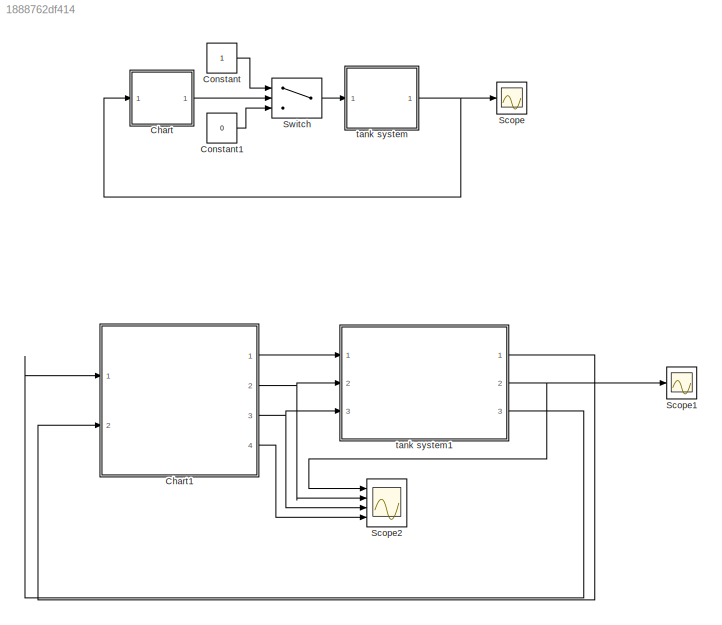
MODEL slx_1888762df414
KIND model
CONFIG AbsTol = auto
CONFIG EnableMultiTasking = off
CONFIG FixedStep = auto
CONFIG MaxStep = auto
CONFIG MinStep = auto
CONFIG RelTol = 1e-3
CONFIG SampleTimeConstraint = Unconstrained
CONFIG Solver = VariableStepAuto
CONFIG SolverName = VariableStepAuto
CONFIG StartTime = 0.0
CONFIG StopTime = 20.0
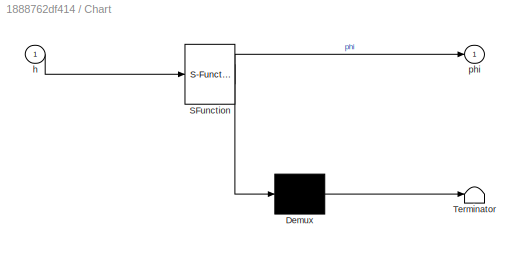
BLOCK [SubSystem] Chart
  Commented = on
  ErrorFcn = Stateflow.Translate.translate
  PermitHierarchicalResolution = ExplicitOnly
  Ports = [1, 1]
  RequestExecContextInheritance = off
  SFBlockType = Chart
  TreatAsAtomicUnit = on
  Variant = off
BLOCK [Demux] Chart/ Demux 
  Outputs = 1
  Ports = [1, 1]
BLOCK [S-Function] Chart/ SFunction 
  EnableBusSupport = on
  FunctionName = sf_sfun
  PortCounts = [1 2]
  Ports = [1, 2]
  SFcnIsStateOwnerBlock = off
  SFunctionDeploymentMode = off
  Tag = Stateflow S-Function TankSystem 3
BLOCK [Terminator] Chart/ Terminator 
BLOCK [Inport] Chart/h
  IconDisplay = Port number
BLOCK [Outport] Chart/phi
  IconDisplay = Port number
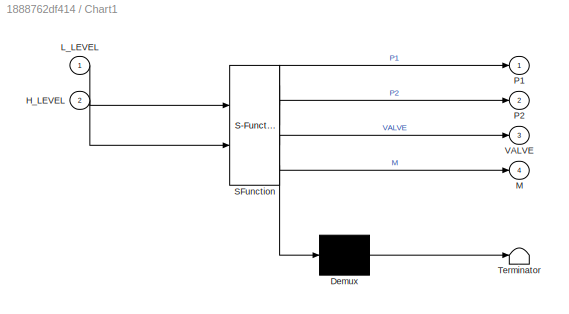
BLOCK [SubSystem] Chart1
  ErrorFcn = Stateflow.Translate.translate
  PermitHierarchicalResolution = ExplicitOnly
  Ports = [2, 4]
  RequestExecContextInheritance = off
  SFBlockType = Chart
  TreatAsAtomicUnit = on
  Variant = off
BLOCK [Demux] Chart1/ Demux 
  Outputs = 1
  Ports = [1, 1]
BLOCK [S-Function] Chart1/ SFunction 
  EnableBusSupport = on
  FunctionName = sf_sfun
  PortCounts = [2 5]
  Ports = [2, 5]
  SFcnIsStateOwnerBlock = off
  SFunctionDeploymentMode = off
  Tag = Stateflow S-Function TankSystem 1
BLOCK [Terminator] Chart1/ Terminator 
BLOCK [Inport] Chart1/H_LEVEL
  IconDisplay = Port number
  Port = 2
BLOCK [Inport] Chart1/L_LEVEL
  IconDisplay = Port number
BLOCK [Outport] Chart1/M
  IconDisplay = Port number
  Port = 4
BLOCK [Outport] Chart1/P1
  IconDisplay = Port number
BLOCK [Outport] Chart1/P2
  IconDisplay = Port number
  Port = 2
BLOCK [Outport] Chart1/VALVE
  IconDisplay = Port number
  Port = 3
BLOCK [Constant] Constant
  Commented = on
BLOCK [Constant] Constant1
  Commented = on
  Value = 0
BLOCK [Scope] Scope
  Commented = on
  NumInputPorts = 1
  Ports = [1]
  ScopeSpecificationString = Simulink.scopes.TimeScopeBlockCfg('CurrentConfiguration', extmgr.ConfigurationSet(extmgr.Configuration('Core','General UI',true),extmgr.Configuration('Core','Source UI',true),extmgr.Configuration('Sources','WiredSimulink',true),extmgr.Configuration('Visuals','Time Domain',true,'SerializedDisplays',{struct('MinYLimReal','0.43468','MaxYLimReal','0.56421','YLabelReal','','MinYLimMag','0.43468','MaxYL...<+1385ch>
BLOCK [Scope] Scope1
  NumInputPorts = 1
  Ports = [1]
  ScopeSpecificationString = Simulink.scopes.TimeScopeBlockCfg('CurrentConfiguration', extmgr.ConfigurationSet(extmgr.Configuration('Core','General UI',true),extmgr.Configuration('Core','Source UI',true),extmgr.Configuration('Sources','WiredSimulink',true,'DataLoggingVariableName','ScopeData1'),extmgr.Configuration('Visuals','Time Domain',true,'SerializedDisplays',{struct('MinYLimReal','0.06025','MaxYLimReal','0.94878','YLabe...<+1371ch>
BLOCK [Scope] Scope2
  NumInputPorts = 4
  Ports = [4]
  ScopeSpecificationString = Simulink.scopes.TimeScopeBlockCfg('CurrentConfiguration', extmgr.ConfigurationSet(extmgr.Configuration('Core','General UI',true),extmgr.Configuration('Core','Source UI',true),extmgr.Configuration('Sources','WiredSimulink',true,'DataLoggingVariableName','ScopeData2'),extmgr.Configuration('Visuals','Time Domain',true,'SerializedDisplays',{struct('MinYLimReal','0.06029','MaxYLimReal','0.94839','YLabe...<+3524ch>
BLOCK [Switch] Switch
  Commented = on
  Criteria = u2 ~= 0
  InputSameDT = off
  SaturateOnIntegerOverflow = off
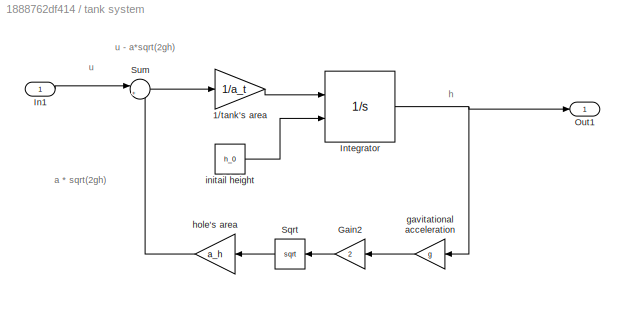
BLOCK [SubSystem] tank system
  Commented = on
  Ports = [1, 1]
  RequestExecContextInheritance = off
  Variant = off
BLOCK [Gain] tank system/1//tank's area
  Gain = 1/a_t
  OutDataTypeStr = Inherit: Inherit via internal rule
  ParamDataTypeStr = Inherit: Inherit via internal rule
  SaturateOnIntegerOverflow = off
BLOCK [Gain] tank system/Gain2
  Gain = 2
  OutDataTypeStr = Inherit: Inherit via internal rule
  ParamDataTypeStr = Inherit: Inherit via internal rule
  SaturateOnIntegerOverflow = off
BLOCK [Inport] tank system/In1
  IconDisplay = Port number
BLOCK [Integrator] tank system/Integrator
  InitialConditionSource = external
  LimitOutput = on
  LowerSaturationLimit = 0
  Ports = [2, 1]
  UpperSaturationLimit = H
BLOCK [Outport] tank system/Out1
  IconDisplay = Port number
BLOCK [Sqrt] tank system/Sqrt
BLOCK [Sum] tank system/Sum
  IconShape = round
  InputSameDT = off
  Inputs = |+-
  OutDataTypeStr = Inherit: Inherit via internal rule
  Ports = [2, 1]
  SaturateOnIntegerOverflow = off
BLOCK [Gain] tank system/gavitational acceleration
  Gain = g
  OutDataTypeStr = Inherit: Inherit via internal rule
  ParamDataTypeStr = Inherit: Inherit via internal rule
  SaturateOnIntegerOverflow = off
BLOCK [Gain] tank system/hole's area
  Gain = a_h
  OutDataTypeStr = Inherit: Inherit via internal rule
  ParamDataTypeStr = Inherit: Inherit via internal rule
  SaturateOnIntegerOverflow = off
BLOCK [Constant] tank system/initail height
  Value = h_0
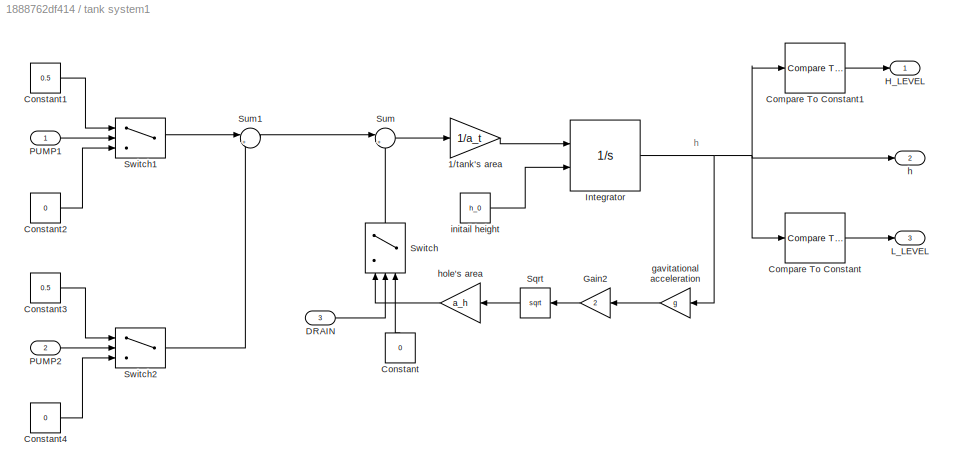
BLOCK [SubSystem] tank system1
  Ports = [3, 3]
  RequestExecContextInheritance = off
  Variant = off
BLOCK [Gain] tank system1/1//tank's area
  Gain = 1/a_t
  OutDataTypeStr = Inherit: Inherit via internal rule
  ParamDataTypeStr = Inherit: Inherit via internal rule
  SaturateOnIntegerOverflow = off
BLOCK [Reference] tank system1/Compare To Constant  REF=simulink/Logic and Bit
Operations/Compare
To Constant
  Ports = [1, 1]
  SourceBlock = simulink/Logic and Bit\nOperations/Compare\nTo Constant
  SourceType = Compare To Constant
BLOCK [Reference] tank system1/Compare To Constant1  REF=simulink/Logic and Bit
Operations/Compare
To Constant
  Ports = [1, 1]
  SourceBlock = simulink/Logic and Bit\nOperations/Compare\nTo Constant
  SourceType = Compare To Constant
BLOCK [Constant] tank system1/Constant
  Value = 0
BLOCK [Constant] tank system1/Constant1
  Value = 0.5
BLOCK [Constant] tank system1/Constant2
  Value = 0
BLOCK [Constant] tank system1/Constant3
  Value = 0.5
BLOCK [Constant] tank system1/Constant4
  Value = 0
BLOCK [Inport] tank system1/DRAIN
  IconDisplay = Port number
  Port = 3
BLOCK [Gain] tank system1/Gain2
  Gain = 2
  OutDataTypeStr = Inherit: Inherit via internal rule
  ParamDataTypeStr = Inherit: Inherit via internal rule
  SaturateOnIntegerOverflow = off
BLOCK [Outport] tank system1/H_LEVEL 
  IconDisplay = Port number
BLOCK [Integrator] tank system1/Integrator
  InitialConditionSource = external
  LimitOutput = on
  LowerSaturationLimit = 0
  Ports = [2, 1]
  UpperSaturationLimit = H
BLOCK [Outport] tank system1/L_LEVEL
  IconDisplay = Port number
  Port = 3
BLOCK [Inport] tank system1/PUMP1
  IconDisplay = Port number
BLOCK [Inport] tank system1/PUMP2
  IconDisplay = Port number
  Port = 2
BLOCK [Sqrt] tank system1/Sqrt
BLOCK [Sum] tank system1/Sum
  IconShape = round
  InputSameDT = off
  Inputs = |+-
  OutDataTypeStr = Inherit: Inherit via internal rule
  Ports = [2, 1]
  SaturateOnIntegerOverflow = off
BLOCK [Sum] tank system1/Sum1
  IconShape = round
  InputSameDT = off
  Inputs = |++
  OutDataTypeStr = Inherit: Inherit via internal rule
  Ports = [2, 1]
  SaturateOnIntegerOverflow = off
BLOCK [Switch] tank system1/Switch
  Criteria = u2 > Threshold
  InputSameDT = off
  SaturateOnIntegerOverflow = off
BLOCK [Switch] tank system1/Switch1
  Criteria = u2 ~= 0
  InputSameDT = off
  SaturateOnIntegerOverflow = off
BLOCK [Switch] tank system1/Switch2
  Criteria = u2 ~= 0
  InputSameDT = off
  SaturateOnIntegerOverflow = off
BLOCK [Gain] tank system1/gavitational acceleration
  Gain = g
  OutDataTypeStr = Inherit: Inherit via internal rule
  ParamDataTypeStr = Inherit: Inherit via internal rule
  SaturateOnIntegerOverflow = off
BLOCK [Outport] tank system1/h
  IconDisplay = Port number
  Port = 2
BLOCK [Gain] tank system1/hole's area
  Gain = a_h
  OutDataTypeStr = Inherit: Inherit via internal rule
  ParamDataTypeStr = Inherit: Inherit via internal rule
  SaturateOnIntegerOverflow = off
BLOCK [Constant] tank system1/initail height
  Value = h_0
ANNOTATION tank system: a * sqrt(2gh)
ANNOTATION tank system: h
ANNOTATION tank system: u
ANNOTATION tank system: u - a*sqrt(2gh)
ANNOTATION tank system1: h
LINE Chart1:1 -> tank system1:1
NET Chart1:2 -> Scope2:2, tank system1:2
NET Chart1:3 -> Scope2:3, tank system1:3
LINE Chart1:4 -> Scope2:4
LINE Chart:1 -> Switch:2
LINE Constant1:1 -> Switch:3
LINE Constant:1 -> Switch:1
LINE Switch:1 -> tank system:1
LINE tank system/1//tank's area:1 -> tank system/Integrator:1
LINE tank system/Gain2:1 -> tank system/Sqrt:1
LINE tank system/In1:1 -> tank system/Sum:1
NET tank system/Integrator:1 -> tank system/Out1:1, tank system/gavitational acceleration:1
LINE tank system/Sqrt:1 -> tank system/hole's area:1
LINE tank system/Sum:1 -> tank system/1//tank's area:1
LINE tank system/gavitational acceleration:1 -> tank system/Gain2:1
LINE tank system/hole's area:1 -> tank system/Sum:2
LINE tank system/initail height:1 -> tank system/Integrator:2
LINE tank system1/1//tank's area:1 -> tank system1/Integrator:1
LINE tank system1/Compare To Constant1:1 -> tank system1/H_LEVEL :1
LINE tank system1/Compare To Constant:1 -> tank system1/L_LEVEL:1
LINE tank system1/Constant1:1 -> tank system1/Switch1:1
LINE tank system1/Constant2:1 -> tank system1/Switch1:3
LINE tank system1/Constant3:1 -> tank system1/Switch2:1
LINE tank system1/Constant4:1 -> tank system1/Switch2:3
LINE tank system1/Constant:1 -> tank system1/Switch:3
LINE tank system1/DRAIN:1 -> tank system1/Switch:2
LINE tank system1/Gain2:1 -> tank system1/Sqrt:1
NET tank system1/Integrator:1 -> tank system1/Compare To Constant1:1, tank system1/Compare To Constant:1, tank system1/gavitational acceleration:1, tank system1/h:1
LINE tank system1/PUMP1:1 -> tank system1/Switch1:2
LINE tank system1/PUMP2:1 -> tank system1/Switch2:2
LINE tank system1/Sqrt:1 -> tank system1/hole's area:1
LINE tank system1/Sum1:1 -> tank system1/Sum:1
LINE tank system1/Sum:1 -> tank system1/1//tank's area:1
LINE tank system1/Switch1:1 -> tank system1/Sum1:1
LINE tank system1/Switch2:1 -> tank system1/Sum1:2
LINE tank system1/Switch:1 -> tank system1/Sum:2
LINE tank system1/gavitational acceleration:1 -> tank system1/Gain2:1
LINE tank system1/hole's area:1 -> tank system1/Switch:1
LINE tank system1/initail height:1 -> tank system1/Integrator:2
LINE tank system1:1 -> Chart1:2
NET tank system1:2 -> Scope1:1, Scope2:1
LINE tank system1:3 -> Chart1:1
NET tank system:1 -> Chart:1, Scope:1
note: NET lines group one-source signal fan-out (src -> all destinations, sorted); 1:1 wires keep LINE
CHART Chart1 states=3 transitions=5
  STATE_LABEL 'FILL\n'
  STATE_LABEL 'DRAIN\n'
  STATE_LABEL 'MIX\n'
CHART Chart states=2 transitions=5
  STATE_LABEL 'OFF\n'
  STATE_LABEL 'ON\n'
